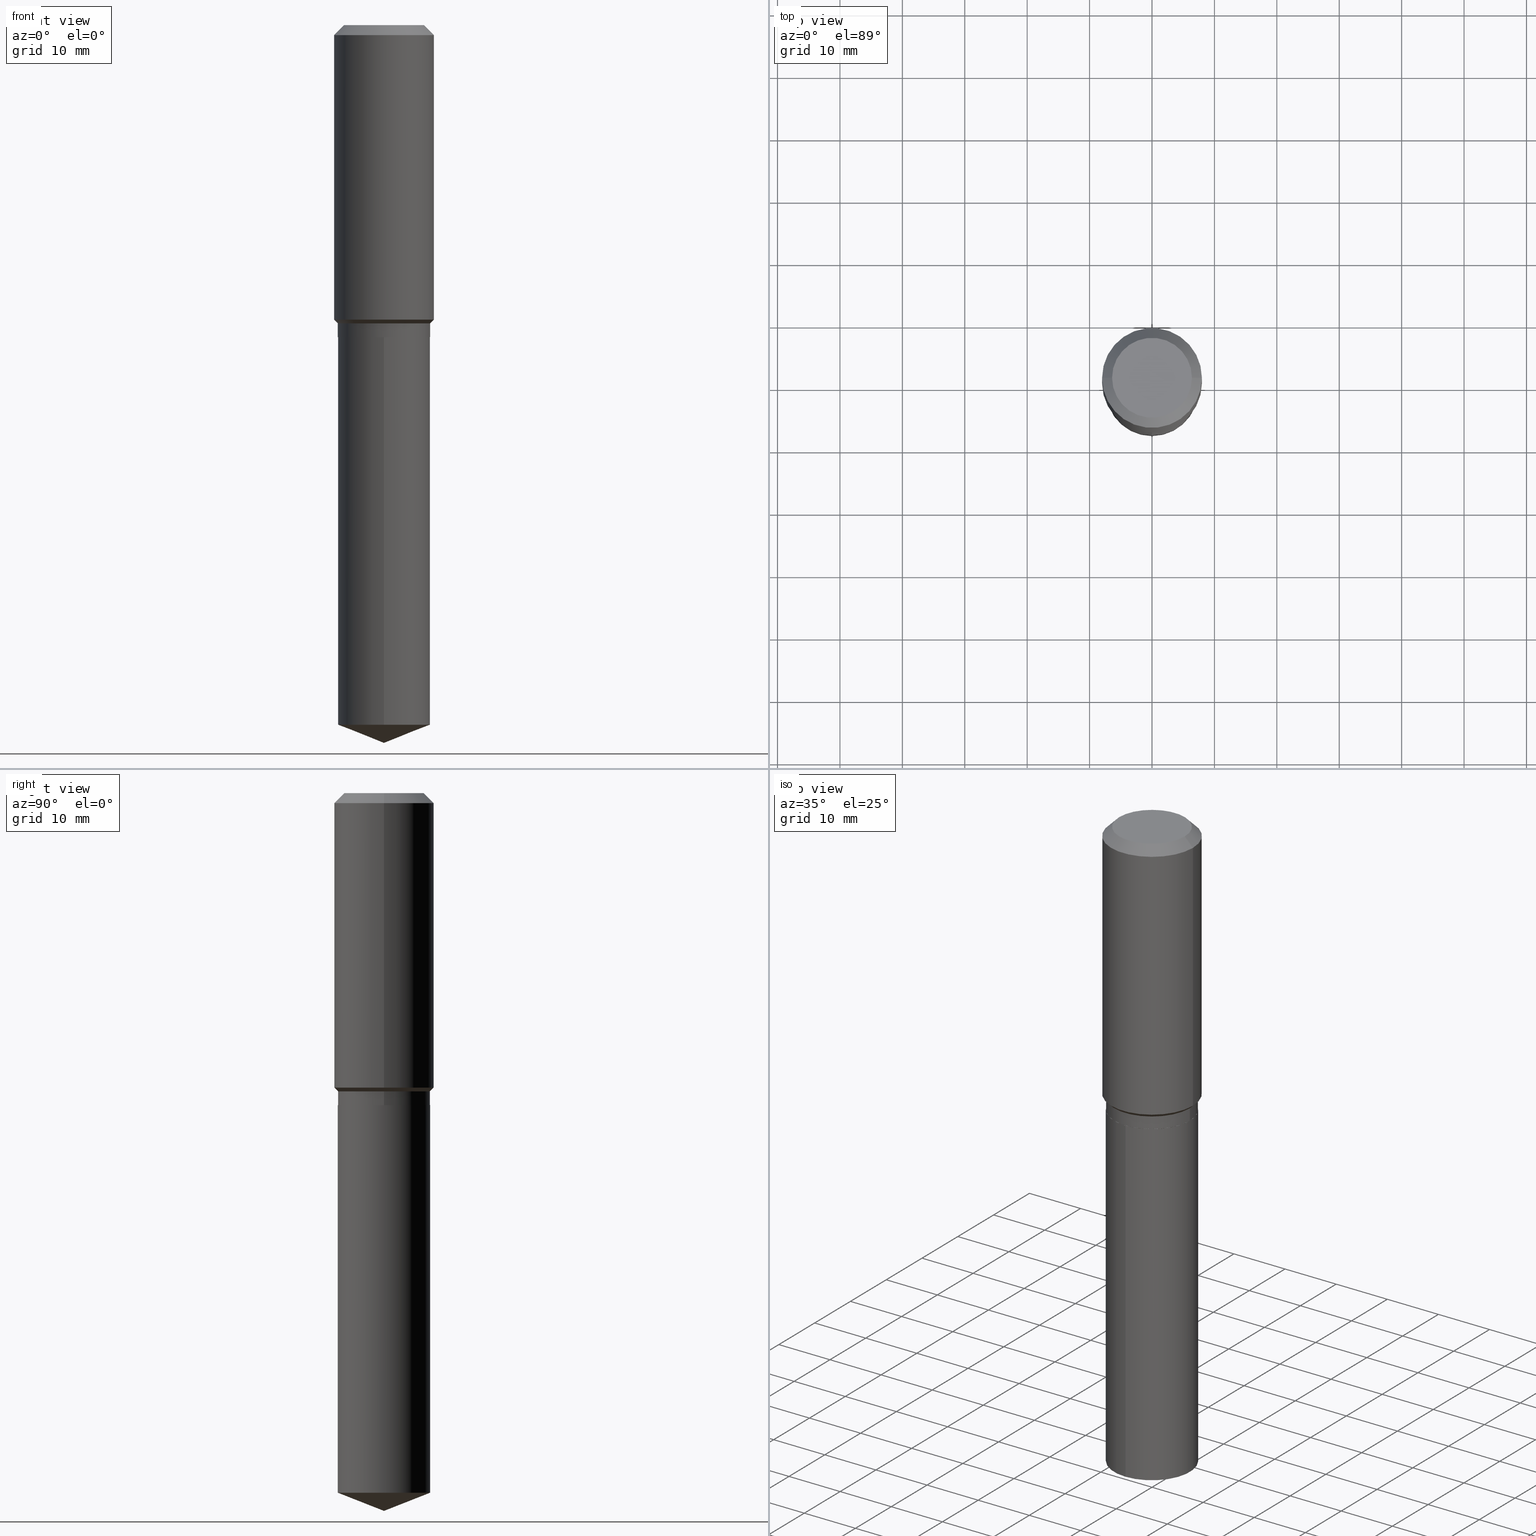
[diagram: canonical four-view strip — front | top / right | iso, engineering-drawing reading convention]
A machine part, canonical four-view strip (front | top / right | iso — engineering-drawing reading convention). The complete STEP part file that produces these views, byte-faithful:
ISO-10303-21;
HEADER;
FILE_DESCRIPTION (( 'STEP AP203' ),
    '1' );
FILE_NAME ('66498.STEP',
    '2024-04-24T23:47:00',
    ( '' ),
    ( '' ),
    'SwSTEP 2.0',
    'SolidWorks 2023',
    '' );
FILE_SCHEMA (( 'CONFIG_CONTROL_DESIGN' ));
ENDSEC;

DATA;
#1 = COORDINATED_UNIVERSAL_TIME_OFFSET ( 5, 0, .BEHIND. ) ;
#2 = CARTESIAN_POINT ( 'NONE',  ( 0.3149500000000000077, -2.380642253931875190E-15, -0.06299000000000036514 ) ) ;
#3 = LINE ( 'NONE', #312, #62 ) ;
#4 = ADVANCED_FACE ( 'NONE', ( #210 ), #475, .T. ) ;
#5 = ORIENTED_EDGE ( 'NONE', *, *, #19, .F. ) ;
#6 = CC_DESIGN_APPROVAL ( #429, ( #183 ) ) ;
#7 = CARTESIAN_POINT ( 'NONE',  ( -4.713871149261284790E-47, 6.730158695841843144E-33, 1.927594061857935750E-18 ) ) ;
#8 = LINE ( 'NONE', #424, #420 ) ;
#9 = EDGE_CURVE ( 'NONE', #451, #253, #331, .T. ) ;
#10 =( NAMED_UNIT ( * ) PLANE_ANGLE_UNIT ( ) SI_UNIT ( $, .RADIAN. ) );
#11 = ORIENTED_EDGE ( 'NONE', *, *, #148, .T. ) ;
#12 = ORIENTED_EDGE ( 'NONE', *, *, #295, .F. ) ;
#13 = CIRCLE ( 'NONE', #486, 0.3149500000000002298 ) ;
#14 = CIRCLE ( 'NONE', #317, 0.2913499999999999979 ) ;
#15 = DIRECTION ( 'NONE',  ( -6.982962677686265922E-15, -1.000000000000000000, 3.750606478344620614E-15 ) ) ;
#16 = EDGE_CURVE ( 'NONE', #98, #66, #206, .T. ) ;
#17 = DIRECTION ( 'NONE',  ( -0.7071067811865453523, 2.468850131082234184E-15, -0.7071067811865496822 ) ) ;
#18 = LENGTH_MEASURE_WITH_UNIT ( LENGTH_MEASURE( 0.02539999999999999897 ), #285 );
#19 = EDGE_CURVE ( 'NONE', #457, #319, #299, .T. ) ;
#20 = CARTESIAN_POINT ( 'NONE',  ( 4.812682610572347912E-29, -6.871235274843308626E-15, -1.967999999999999527 ) ) ;
#21 = CIRCLE ( 'NONE', #400, 0.2913499999999999979 ) ;
#22 = CARTESIAN_POINT ( 'NONE',  ( 1.540400801016026329E-30, -2.199284095337310135E-16, -0.06299000000000036514 ) ) ;
#23 = FACE_OUTER_BOUND ( 'NONE', #205, .T. ) ;
#24 = ORIENTED_EDGE ( 'NONE', *, *, #484, .F. ) ;
#25 = ORIENTED_EDGE ( 'NONE', *, *, #67, .T. ) ;
#26 = ADVANCED_FACE ( 'NONE', ( #453 ), #102, .T. ) ;
#27 = ADVANCED_FACE ( 'NONE', ( #263 ), #43, .F. ) ;
#28 = DATE_AND_TIME ( #324, #329 ) ;
#29 = CARTESIAN_POINT ( 'NONE',  ( 1.079154912815724214E-28, -1.540718386847978114E-14, -4.412834182929587179 ) ) ;
#30 = CIRCLE ( 'NONE', #170, 0.2913499999999999979 ) ;
#31 = ORIENTED_EDGE ( 'NONE', *, *, #106, .F. ) ;
#32 = ADVANCED_FACE ( 'NONE', ( #458 ), #422, .T. ) ;
#33 = DIRECTION ( 'NONE',  ( 1.000000000000000000, -6.982962677686267499E-15, 0.000000000000000000 ) ) ;
#34 = PERSON_AND_ORGANIZATION ( #169, #267 ) ;
#35 = DIRECTION ( 'NONE',  ( -2.445468806185136597E-29, 3.491481338843145583E-15, 1.000000000000000000 ) ) ;
#36 = PERSON_AND_ORGANIZATION ( #169, #267 ) ;
#37 = AXIS2_PLACEMENT_3D ( 'NONE', #286, #165, #389 ) ;
#38 = ORIENTED_EDGE ( 'NONE', *, *, #273, .T. ) ;
#39 = VECTOR ( 'NONE', #190, 39.37007874015748854 ) ;
#40 = LINE ( 'NONE', #490, #39 ) ;
#41 = APPROVAL_DATE_TIME ( #365, #429 ) ;
#42 = EDGE_LOOP ( 'NONE', ( #426, #122, #454, #74 ) ) ;
#43 = PLANE ( 'NONE',  #279 ) ;
#44 = DIRECTION ( 'NONE',  ( -2.445468806185136877E-29, 3.491481338843145188E-15, 1.000000000000000000 ) ) ;
#45 = VERTEX_POINT ( 'NONE', #72 ) ;
#46 = VECTOR ( 'NONE', #107, 39.37007874015748854 ) ;
#47 = CARTESIAN_POINT ( 'NONE',  ( -0.3149500000000002298, -4.247572240624702209E-15, -1.857499999999999041 ) ) ;
#48 = PRODUCT_DEFINITION_FORMATION_WITH_SPECIFIED_SOURCE ( 'ANY', '', #416, .NOT_KNOWN. ) ;
#49 = ORIENTED_EDGE ( 'NONE', *, *, #67, .F. ) ;
#50 = FACE_OUTER_BOUND ( 'NONE', #185, .T. ) ;
#51 = CARTESIAN_POINT ( 'NONE',  ( -0.3149500000000001743, 2.237854346276436774E-15, -1.549218606675783237E-29 ) ) ;
#52 = ORIENTED_EDGE ( 'NONE', *, *, #381, .T. ) ;
#53 = DIRECTION ( 'NONE',  ( -2.445510039064079162E-29, 3.491422291013670313E-15, 1.000000000000000000 ) ) ;
#54 = APPROVAL_PERSON_ORGANIZATION ( #96, #386, #435 ) ;
#55 = CARTESIAN_POINT ( 'NONE',  ( 1.540400801016026329E-30, -2.199284095337310135E-16, -0.06299000000000036514 ) ) ;
#56 = MECHANICAL_CONTEXT ( 'NONE', #234, 'mechanical' ) ;
#57 = DIRECTION ( 'NONE',  ( 1.000000000000000000, -6.982962677686264344E-15, 0.000000000000000000 ) ) ;
#58 = EDGE_LOOP ( 'NONE', ( #188, #11 ) ) ;
#59 = ORIENTED_EDGE ( 'NONE', *, *, #295, .T. ) ;
#60 = VECTOR ( 'NONE', #192, 39.37007874015748143 ) ;
#61 = APPROVAL_PERSON_ORGANIZATION ( #36, #429, #409 ) ;
#62 = VECTOR ( 'NONE', #17, 39.37007874015748143 ) ;
#63 = CARTESIAN_POINT ( 'NONE',  ( 2.070166260637159556E-15, 0.2913499999999845658, -4.412834182929588067 ) ) ;
#64 = EDGE_CURVE ( 'NONE', #66, #98, #236, .T. ) ;
#65 = DIRECTION ( 'NONE',  ( 1.000000000000000000, -6.982962677686266711E-15, 0.000000000000000000 ) ) ;
#66 = VERTEX_POINT ( 'NONE', #224 ) ;
#67 = EDGE_CURVE ( 'NONE', #95, #284, #3, .T. ) ;
#68 = VECTOR ( 'NONE', #44, 39.37007874015748143 ) ;
#69 = CC_DESIGN_DATE_AND_TIME_ASSIGNMENT ( #218, #180, ( #183 ) ) ;
#70 = DIRECTION ( 'NONE',  ( 1.000000000000000000, -6.982962677686266711E-15, 0.000000000000000000 ) ) ;
#71 = COORDINATED_UNIVERSAL_TIME_OFFSET ( 5, 0, .BEHIND. ) ;
#72 = CARTESIAN_POINT ( 'NONE',  ( 0.2913499999999999979, -8.602311722641732307E-15, -1.881099999999999328 ) ) ;
#73 = SECURITY_CLASSIFICATION_LEVEL ( 'unclassified' ) ;
#74 = ORIENTED_EDGE ( 'NONE', *, *, #360, .F. ) ;
#75 = CLOSED_SHELL ( 'NONE', ( #85, #26, #256, #32, #370, #311, #86, #4, #233, #27, #333, #154 ) ) ;
#76 = AXIS2_PLACEMENT_3D ( 'NONE', #20, #243, #167 ) ;
#77 = CIRCLE ( 'NONE', #237, 0.2913499999999999979 ) ;
#78 = CARTESIAN_POINT ( 'NONE',  ( -9.427742298522569579E-47, 1.346031739168368629E-32, 3.855188123715871501E-18 ) ) ;
#79 = ORIENTED_EDGE ( 'NONE', *, *, #484, .T. ) ;
#80 = DIRECTION ( 'NONE',  ( -6.982962677686265922E-15, -1.000000000000000000, 3.750606478344620614E-15 ) ) ;
#81 = ORIENTED_EDGE ( 'NONE', *, *, #197, .T. ) ;
#82 = CARTESIAN_POINT ( 'NONE',  ( 1.107229125286652387E-28, -1.580776356479349087E-14, -4.527599999999999625 ) ) ;
#83 = PRODUCT_DEFINITION_SHAPE ( 'NONE', 'NONE',  #308 ) ;
#84 = LINE ( 'NONE', #194, #255 ) ;
#85 = ADVANCED_FACE ( 'NONE', ( #460 ), #119, .T. ) ;
#86 = ADVANCED_FACE ( 'NONE', ( #291 ), #184, .T. ) ;
#87 = AXIS2_PLACEMENT_3D ( 'NONE', #439, #171, #474 ) ;
#88 = CYLINDRICAL_SURFACE ( 'NONE', #373, 0.3149500000000001743 ) ;
#89 = CARTESIAN_POINT ( 'NONE',  ( 4.600171371314858476E-29, -6.567825546497838684E-15, -1.881099999999999328 ) ) ;
#90 = ORIENTED_EDGE ( 'NONE', *, *, #433, .F. ) ;
#91 = DIRECTION ( 'NONE',  ( -2.445468806185136597E-29, 3.491481338843145583E-15, 1.000000000000000000 ) ) ;
#92 = ORIENTED_EDGE ( 'NONE', *, *, #397, .T. ) ;
#93 = CARTESIAN_POINT ( 'NONE',  ( 1.079154912815724214E-28, -1.540718386847978114E-14, -4.412834182929587179 ) ) ;
#94 = VERTEX_POINT ( 'NONE', #408 ) ;
#95 = VERTEX_POINT ( 'NONE', #261 ) ;
#96 = PERSON_AND_ORGANIZATION ( #169, #267 ) ;
#97 = AXIS2_PLACEMENT_3D ( 'NONE', #294, #357, #293 ) ;
#98 = VERTEX_POINT ( 'NONE', #217 ) ;
#99 = DIRECTION ( 'NONE',  ( 1.000000000000000000, -6.982962677686266711E-15, 0.000000000000000000 ) ) ;
#100 = DIRECTION ( 'NONE',  ( -6.982962677686265922E-15, -1.000000000000000000, 3.750606478344620614E-15 ) ) ;
#101 = CARTESIAN_POINT ( 'NONE',  ( 0.000000000000000000, 0.000000000000000000, 0.000000000000000000 ) ) ;
#102 = CONICAL_SURFACE ( 'NONE', #476, 0.3149500000000000077, 0.7853981633974452814 ) ;
#103 = DIRECTION ( 'NONE',  ( -2.445468806185136597E-29, 3.491481338843145583E-15, 1.000000000000000000 ) ) ;
#104 =( GEOMETRIC_REPRESENTATION_CONTEXT ( 3 ) GLOBAL_UNCERTAINTY_ASSIGNED_CONTEXT ( ( #166 ) ) GLOBAL_UNIT_ASSIGNED_CONTEXT ( ( #354, #10, #432 ) ) REPRESENTATION_CONTEXT ( 'NONE', 'WORKASPACE' ) );
#105 = CIRCLE ( 'NONE', #297, 0.2519600000000000173 ) ;
#106 = EDGE_CURVE ( 'NONE', #95, #94, #402, .T. ) ;
#107 = DIRECTION ( 'NONE',  ( -0.7071067811865469066, 7.493145998870351005E-15, 0.7071067811865479058 ) ) ;
#108 = CARTESIAN_POINT ( 'NONE',  ( -0.2908499999999999974, -4.806367468554479152E-15, -1.968499999999999472 ) ) ;
#109 = CARTESIAN_POINT ( 'NONE',  ( -0.2913499999999999979, -4.649364150033521384E-15, -1.881099999999999328 ) ) ;
#110 = PERSON_AND_ORGANIZATION ( #169, #267 ) ;
#111 = PERSON_AND_ORGANIZATION_ROLE ( 'classification_officer' ) ;
#112 = DIRECTION ( 'NONE',  ( 2.445468806185136597E-29, -3.491481338843145583E-15, -1.000000000000000000 ) ) ;
#113 = EDGE_CURVE ( 'NONE', #45, #226, #219, .T. ) ;
#114 = EDGE_LOOP ( 'NONE', ( #151, #81, #52, #49 ) ) ;
#115 = CARTESIAN_POINT ( 'NONE',  ( 0.2913499999999999979, -8.602311722641732307E-15, -1.881099999999999328 ) ) ;
#116 = SHAPE_DEFINITION_REPRESENTATION ( #83, #443 ) ;
#117 = DIRECTION ( 'NONE',  ( 1.000000000000000000, -6.982962677686267499E-15, 0.000000000000000000 ) ) ;
#118 = AXIS2_PLACEMENT_3D ( 'NONE', #482, #193, #348 ) ;
#119 = CONICAL_SURFACE ( 'NONE', #371, 0.2908499999999999974, 0.7853981633975507526 ) ;
#120 = DIRECTION ( 'NONE',  ( 1.000000000000000000, -6.982962677686266711E-15, 4.876115136096691995E-29 ) ) ;
#121 = CARTESIAN_POINT ( 'NONE',  ( 4.813905344975440153E-29, -6.872981015512730130E-15, -1.968499999999999472 ) ) ;
#122 = ORIENTED_EDGE ( 'NONE', *, *, #9, .T. ) ;
#123 = CARTESIAN_POINT ( 'NONE',  ( 4.600171371314858476E-29, -6.567825546497838684E-15, -1.881099999999999328 ) ) ;
#124 = FACE_OUTER_BOUND ( 'NONE', #143, .T. ) ;
#125 = CIRCLE ( 'NONE', #76, 0.2913499999999999979 ) ;
#126 = LINE ( 'NONE', #163, #60 ) ;
#127 = ORIENTED_EDGE ( 'NONE', *, *, #360, .T. ) ;
#128 = CYLINDRICAL_SURFACE ( 'NONE', #431, 0.2913499999999999979 ) ;
#129 = DIRECTION ( 'NONE',  ( 1.000000000000000000, -6.982962677686267499E-15, 0.000000000000000000 ) ) ;
#130 = EDGE_CURVE ( 'NONE', #457, #152, #40, .T. ) ;
#131 = ORIENTED_EDGE ( 'NONE', *, *, #113, .F. ) ;
#132 = PERSON_AND_ORGANIZATION_ROLE ( 'design_owner' ) ;
#133 = DIRECTION ( 'NONE',  ( 1.000000000000000000, -6.982962677686265922E-15, 4.876176775795935232E-29 ) ) ;
#134 = EDGE_CURVE ( 'NONE', #447, #305, #14, .T. ) ;
#135 = CARTESIAN_POINT ( 'NONE',  ( 0.000000000000000000, 0.000000000000000000, 0.000000000000000000 ) ) ;
#136 = CC_DESIGN_PERSON_AND_ORGANIZATION_ASSIGNMENT ( #335, #213, ( #48 ) ) ;
#137 = COORDINATED_UNIVERSAL_TIME_OFFSET ( 5, 0, .BEHIND. ) ;
#138 = DIRECTION ( 'NONE',  ( -2.445468806185136877E-29, 3.491481338843145188E-15, 1.000000000000000000 ) ) ;
#139 = CARTESIAN_POINT ( 'NONE',  ( 0.000000000000000000, 0.000000000000000000, 0.000000000000000000 ) ) ;
#140 = DIRECTION ( 'NONE',  ( -2.445468806185136597E-29, 3.491481338843145583E-15, 1.000000000000000000 ) ) ;
#141 = CARTESIAN_POINT ( 'NONE',  ( 4.813905344975440153E-29, -6.872981015512730130E-15, -1.968499999999999472 ) ) ;
#142 = DIRECTION ( 'NONE',  ( -2.445468806185136597E-29, 3.491481338843145583E-15, 1.000000000000000000 ) ) ;
#143 = EDGE_LOOP ( 'NONE', ( #449, #31, #25, #425 ) ) ;
#144 = DIRECTION ( 'NONE',  ( 0.7071067811865469066, -2.468850131082251144E-15, 0.7071067811865479058 ) ) ;
#145 = AXIS2_PLACEMENT_3D ( 'NONE', #200, #289, #99 ) ;
#146 = DIRECTION ( 'NONE',  ( -1.000000000000000000, 6.982962677686266711E-15, 0.000000000000000000 ) ) ;
#147 = ORIENTED_EDGE ( 'NONE', *, *, #300, .F. ) ;
#148 = EDGE_CURVE ( 'NONE', #94, #95, #105, .T. ) ;
#149 = EDGE_CURVE ( 'NONE', #161, #45, #77, .T. ) ;
#150 = CARTESIAN_POINT ( 'NONE',  ( 4.813905344975440153E-29, -6.872981015512730130E-15, -1.968499999999999472 ) ) ;
#151 = ORIENTED_EDGE ( 'NONE', *, *, #148, .F. ) ;
#152 = VERTEX_POINT ( 'NONE', #445 ) ;
#153 = AXIS2_PLACEMENT_3D ( 'NONE', #387, #310, #459 ) ;
#154 = ADVANCED_FACE ( 'NONE', ( #187 ), #175, .T. ) ;
#155 = LOCAL_TIME ( 19, 47, 0.000000000000000000, #137 ) ;
#156 = FACE_OUTER_BOUND ( 'NONE', #240, .T. ) ;
#157 = CARTESIAN_POINT ( 'NONE',  ( 4.812682610572347912E-29, -6.871235274843308626E-15, -1.967999999999999527 ) ) ;
#158 = DIRECTION ( 'NONE',  ( 0.7071067811865453523, -7.319954787623248157E-15, -0.7071067811865496822 ) ) ;
#159 = ORIENTED_EDGE ( 'NONE', *, *, #134, .T. ) ;
#160 = CARTESIAN_POINT ( 'NONE',  ( -0.3149500000000000077, -1.114823151940998237E-15, -0.06299000000000036514 ) ) ;
#161 = VERTEX_POINT ( 'NONE', #109 ) ;
#162 = CIRCLE ( 'NONE', #410, 0.3149500000000000077 ) ;
#163 = CARTESIAN_POINT ( 'NONE',  ( 0.3149500000000001743, -2.199284095337290660E-15, 1.535751875536930690E-29 ) ) ;
#164 = APPLICATION_PROTOCOL_DEFINITION ( 'international standard', 'config_control_design', 1994, #234 ) ;
#165 = DIRECTION ( 'NONE',  ( 2.445468806185136597E-29, -3.491481338843145583E-15, -1.000000000000000000 ) ) ;
#166 = UNCERTAINTY_MEASURE_WITH_UNIT (LENGTH_MEASURE( 1.000000000000000082E-05 ), #354, 'distance_accuracy_value', 'NONE');
#167 = DIRECTION ( 'NONE',  ( 1.000000000000000000, -6.982962677686267499E-15, 0.000000000000000000 ) ) ;
#168 = EDGE_LOOP ( 'NONE', ( #59, #467, #380, #147 ) ) ;
#169 = PERSON ( 'UNSPECIFIED', 'UNSPECIFIED', 'UNSPECIFIED', ('UNSPECIFIED'), ('UNSPECIFIED'), ('UNSPECIFIED') ) ;
#170 = AXIS2_PLACEMENT_3D ( 'NONE', #93, #390, #455 ) ;
#171 = DIRECTION ( 'NONE',  ( -2.438088387897960049E-29, 3.491481338843145188E-15, 1.000000000000000000 ) ) ;
#172 = CARTESIAN_POINT ( 'NONE',  ( -0.2913499999999999979, 2.070166260637051876E-15, -1.433131738545766651E-29 ) ) ;
#173 = EDGE_LOOP ( 'NONE', ( #225, #403, #338, #352 ) ) ;
#174 = PLANE ( 'NONE',  #87 ) ;
#175 = CONICAL_SURFACE ( 'NONE', #384, 0.2908499999999999974, 0.7853981633975507526 ) ;
#176 = CARTESIAN_POINT ( 'NONE',  ( -0.2908499999999999974, -4.803718241380367951E-15, -1.968499999999999472 ) ) ;
#177 = PERSON_AND_ORGANIZATION_ROLE ( 'design_supplier' ) ;
#178 = EDGE_CURVE ( 'NONE', #447, #45, #337, .T. ) ;
#179 = DIRECTION ( 'NONE',  ( -2.445468806185136597E-29, 3.491481338843145583E-15, 1.000000000000000000 ) ) ;
#180 = DATE_TIME_ROLE ( 'classification_date' ) ;
#181 = AXIS2_PLACEMENT_3D ( 'NONE', #468, #202, #129 ) ;
#182 = DESIGN_CONTEXT ( 'detailed design', #379, 'design' ) ;
#183 = SECURITY_CLASSIFICATION ( '', '', #73 ) ;
#184 = CONICAL_SURFACE ( 'NONE', #316, 0.2913499999999999979, 0.7853981633974476129 ) ;
#185 = EDGE_LOOP ( 'NONE', ( #5, #481, #290 ) ) ;
#186 = DATE_TIME_ROLE ( 'creation_date' ) ;
#187 = FACE_OUTER_BOUND ( 'NONE', #42, .T. ) ;
#188 = ORIENTED_EDGE ( 'NONE', *, *, #106, .T. ) ;
#189 = EDGE_LOOP ( 'NONE', ( #90, #363 ) ) ;
#190 = DIRECTION ( 'NONE',  ( -6.497071151882119836E-15, -0.9304175679820245737, 0.3665012267242972466 ) ) ;
#191 = AXIS2_PLACEMENT_3D ( 'NONE', #469, #53, #15 ) ;
#192 = DIRECTION ( 'NONE',  ( -2.445468806185136877E-29, 3.491481338843145188E-15, 1.000000000000000000 ) ) ;
#193 = DIRECTION ( 'NONE',  ( -2.445510039064079162E-29, 3.491422291013670313E-15, 1.000000000000000000 ) ) ;
#194 = CARTESIAN_POINT ( 'NONE',  ( -2.034486176143845503E-15, -0.2913500000000068257, -1.968499999999998362 ) ) ;
#195 = DIRECTION ( 'NONE',  ( 1.000000000000000000, 0.000000000000000000, 0.000000000000000000 ) ) ;
#196 = DIRECTION ( 'NONE',  ( 1.000000000000000000, -6.982962677686265922E-15, 4.876176775795935232E-29 ) ) ;
#197 = EDGE_CURVE ( 'NONE', #94, #339, #450, .T. ) ;
#198 = AXIS2_PLACEMENT_3D ( 'NONE', #141, #483, #334 ) ;
#199 = LINE ( 'NONE', #51, #68 ) ;
#200 = CARTESIAN_POINT ( 'NONE',  ( 4.813905344975440153E-29, -6.872981015512730130E-15, -1.968499999999999472 ) ) ;
#201 = ADVANCED_FACE ( 'NONE', ( #156 ), #128, .T. ) ;
#202 = DIRECTION ( 'NONE',  ( -2.445468806185136597E-29, 3.491481338843145583E-15, 1.000000000000000000 ) ) ;
#203 = CARTESIAN_POINT ( 'NONE',  ( 0.2913499999999999979, -8.905721450987203038E-15, -1.967999999999999527 ) ) ;
#204 = AXIS2_PLACEMENT_3D ( 'NONE', #461, #91, #350 ) ;
#205 = EDGE_LOOP ( 'NONE', ( #346, #307 ) ) ;
#206 = CIRCLE ( 'NONE', #198, 0.2913499999999999979 ) ;
#207 = APPROVAL_DATE_TIME ( #28, #386 ) ;
#208 = ORIENTED_EDGE ( 'NONE', *, *, #433, .T. ) ;
#209 = FACE_OUTER_BOUND ( 'NONE', #189, .T. ) ;
#210 = FACE_OUTER_BOUND ( 'NONE', #173, .T. ) ;
#211 = DIRECTION ( 'NONE',  ( 6.611014441532068167E-15, 0.9304175679820272382, 0.3665012267242907518 ) ) ;
#212 = DIRECTION ( 'NONE',  ( -2.445468806185136597E-29, 3.491481338843145583E-15, 1.000000000000000000 ) ) ;
#213 = PERSON_AND_ORGANIZATION_ROLE ( 'creator' ) ;
#214 = MANIFOLD_SOLID_BREP ( 'Body-Move/Copy2[1]', #393 ) ;
#215 = ADVANCED_FACE ( 'NONE', ( #272 ), #235, .T. ) ;
#216 = EDGE_LOOP ( 'NONE', ( #208, #361, #372, #228 ) ) ;
#217 = CARTESIAN_POINT ( 'NONE',  ( 2.070166260637159950E-15, 0.2913499999999931145, -1.968500000000000583 ) ) ;
#218 = DATE_AND_TIME ( #265, #288 ) ;
#219 = LINE ( 'NONE', #115, #248 ) ;
#220 = COORDINATED_UNIVERSAL_TIME_OFFSET ( 5, 0, .BEHIND. ) ;
#221 = CIRCLE ( 'NONE', #145, 0.2908499999999999974 ) ;
#222 = DIRECTION ( 'NONE',  ( 2.438088387897960049E-29, -3.491481338843145188E-15, -1.000000000000000000 ) ) ;
#223 = AXIS2_PLACEMENT_3D ( 'NONE', #123, #376, #117 ) ;
#224 = CARTESIAN_POINT ( 'NONE',  ( -2.034486176143845503E-15, -0.2913500000000068257, -1.968499999999998362 ) ) ;
#225 = ORIENTED_EDGE ( 'NONE', *, *, #249, .F. ) ;
#226 = VERTEX_POINT ( 'NONE', #313 ) ;
#227 = DIRECTION ( 'NONE',  ( -2.445510039064079162E-29, 3.491422291013670313E-15, 1.000000000000000000 ) ) ;
#228 = ORIENTED_EDGE ( 'NONE', *, *, #275, .F. ) ;
#229 = CONICAL_SURFACE ( 'NONE', #153, 99.94676754583991851, 1.195550537616119291 ) ;
#230 = FACE_OUTER_BOUND ( 'NONE', #326, .T. ) ;
#231 = ORIENTED_EDGE ( 'NONE', *, *, #273, .F. ) ;
#232 = EDGE_CURVE ( 'NONE', #152, #319, #30, .T. ) ;
#233 = ADVANCED_FACE ( 'NONE', ( #124 ), #287, .T. ) ;
#234 = APPLICATION_CONTEXT ( 'configuration controlled 3d designs of mechanical parts and assemblies' ) ;
#235 = CYLINDRICAL_SURFACE ( 'NONE', #191, 0.2913499999999999979 ) ;
#236 = CIRCLE ( 'NONE', #488, 0.2913499999999999979 ) ;
#237 = AXIS2_PLACEMENT_3D ( 'NONE', #89, #369, #33 ) ;
#238 = DIRECTION ( 'NONE',  ( -2.445510039064079162E-29, 3.491422291013670313E-15, 1.000000000000000000 ) ) ;
#239 = ADVANCED_FACE ( 'NONE', ( #230 ), #229, .T. ) ;
#240 = EDGE_LOOP ( 'NONE', ( #264, #419, #470, #231 ) ) ;
#241 = CARTESIAN_POINT ( 'NONE',  ( 0.000000000000000000, 0.000000000000000000, 0.000000000000000000 ) ) ;
#242 = DIRECTION ( 'NONE',  ( -2.445468806185136597E-29, 3.491481338843145583E-15, 1.000000000000000000 ) ) ;
#243 = DIRECTION ( 'NONE',  ( -2.445468806185136597E-29, 3.491481338843145583E-15, 1.000000000000000000 ) ) ;
#244 = EDGE_LOOP ( 'NONE', ( #437, #421, #38, #252 ) ) ;
#245 = FACE_OUTER_BOUND ( 'NONE', #271, .T. ) ;
#246 = VECTOR ( 'NONE', #211, 39.37007874015747433 ) ;
#247 = CIRCLE ( 'NONE', #181, 0.2913499999999999979 ) ;
#248 = VECTOR ( 'NONE', #144, 39.37007874015748854 ) ;
#249 = EDGE_CURVE ( 'NONE', #281, #284, #199, .T. ) ;
#250 = LINE ( 'NONE', #108, #302 ) ;
#251 = CC_DESIGN_PERSON_AND_ORGANIZATION_ASSIGNMENT ( #327, #328, ( #308 ) ) ;
#252 = ORIENTED_EDGE ( 'NONE', *, *, #16, .F. ) ;
#253 = VERTEX_POINT ( 'NONE', #345 ) ;
#254 = APPROVAL_DATE_TIME ( #452, #282 ) ;
#255 = VECTOR ( 'NONE', #227, 39.37007874015748143 ) ;
#256 = ADVANCED_FACE ( 'NONE', ( #418 ), #88, .T. ) ;
#257 = DIRECTION ( 'NONE',  ( 1.000000000000000000, -6.982962677686266711E-15, 4.876115136096691995E-29 ) ) ;
#258 = DIMENSIONAL_EXPONENTS ( 1.000000000000000000, 0.000000000000000000, 0.000000000000000000, 0.000000000000000000, 0.000000000000000000, 0.000000000000000000, 0.000000000000000000 ) ;
#259 = COORDINATED_UNIVERSAL_TIME_OFFSET ( 5, 0, .BEHIND. ) ;
#260 = DIRECTION ( 'NONE',  ( -1.000000000000000000, 6.982962677686265922E-15, -4.876176775795935793E-29 ) ) ;
#261 = CARTESIAN_POINT ( 'NONE',  ( -0.2519600000000000173, 1.869391481036695286E-15, 3.855188123703182704E-18 ) ) ;
#262 = APPROVAL_STATUS ( 'not_yet_approved' ) ;
#263 = FACE_OUTER_BOUND ( 'NONE', #58, .T. ) ;
#264 = ORIENTED_EDGE ( 'NONE', *, *, #232, .T. ) ;
#265 = CALENDAR_DATE ( 2024, 24, 4 ) ;
#266 = EDGE_LOOP ( 'NONE', ( #315, #127, #277, #385 ) ) ;
#267 = ORGANIZATION ( 'UNSPECIFIED', 'UNSPECIFIED', '' ) ;
#268 = CARTESIAN_POINT ( 'NONE',  ( 4.813905344975440153E-29, -6.872981015512730130E-15, -1.968499999999999472 ) ) ;
#269 = CC_DESIGN_APPROVAL ( #282, ( #48 ) ) ;
#270 = CARTESIAN_POINT ( 'NONE',  ( 0.000000000000000000, 0.000000000000000000, 0.000000000000000000 ) ) ;
#271 = EDGE_LOOP ( 'NONE', ( #159, #92, #24, #367 ) ) ;
#272 = FACE_OUTER_BOUND ( 'NONE', #244, .T. ) ;
#273 = EDGE_CURVE ( 'NONE', #152, #66, #84, .T. ) ;
#274 = DIRECTION ( 'NONE',  ( -2.445468806185136597E-29, 3.491481338843145583E-15, 1.000000000000000000 ) ) ;
#275 = EDGE_CURVE ( 'NONE', #253, #447, #8, .T. ) ;
#276 = VECTOR ( 'NONE', #414, 39.37007874015748143 ) ;
#277 = ORIENTED_EDGE ( 'NONE', *, *, #178, .T. ) ;
#278 = LOCAL_TIME ( 19, 47, 0.000000000000000000, #1 ) ;
#279 = AXIS2_PLACEMENT_3D ( 'NONE', #7, #222, #260 ) ;
#280 = FACE_OUTER_BOUND ( 'NONE', #266, .T. ) ;
#281 = VERTEX_POINT ( 'NONE', #47 ) ;
#282 = APPROVAL ( #304, 'UNSPECIFIED' ) ;
#283 = CARTESIAN_POINT ( 'NONE',  ( -0.2913499999999999979, -4.649364150033521384E-15, -1.967999999999999527 ) ) ;
#284 = VERTEX_POINT ( 'NONE', #160 ) ;
#285 =( LENGTH_UNIT ( ) NAMED_UNIT ( * ) SI_UNIT ( $, .METRE. ) );
#286 = CARTESIAN_POINT ( 'NONE',  ( 1.540400801016026329E-30, -2.199284095337310135E-16, -0.06299000000000036514 ) ) ;
#287 = CONICAL_SURFACE ( 'NONE', #37, 0.3149500000000000077, 0.7853981633974452814 ) ;
#288 = LOCAL_TIME ( 19, 47, 0.000000000000000000, #71 ) ;
#289 = DIRECTION ( 'NONE',  ( -2.445468806185136597E-29, 3.491481338843145583E-15, 1.000000000000000000 ) ) ;
#290 = ORIENTED_EDGE ( 'NONE', *, *, #359, .F. ) ;
#291 = FACE_OUTER_BOUND ( 'NONE', #351, .T. ) ;
#292 = APPROVAL_STATUS ( 'not_yet_approved' ) ;
#293 = DIRECTION ( 'NONE',  ( 6.982962677686265922E-15, 1.000000000000000000, -3.491422291013670313E-15 ) ) ;
#294 = CARTESIAN_POINT ( 'NONE',  ( 4.813905344975440153E-29, -6.872981015512730130E-15, -1.968499999999999472 ) ) ;
#295 = EDGE_CURVE ( 'NONE', #226, #281, #322, .T. ) ;
#296 = LINE ( 'NONE', #320, #46 ) ;
#297 = AXIS2_PLACEMENT_3D ( 'NONE', #78, #377, #257 ) ;
#298 = CARTESIAN_POINT ( 'NONE',  ( 4.542458307488888673E-29, -6.485426586901138982E-15, -1.857499999999999041 ) ) ;
#299 = LINE ( 'NONE', #442, #246 ) ;
#300 = EDGE_CURVE ( 'NONE', #226, #339, #126, .T. ) ;
#301 = CARTESIAN_POINT ( 'NONE',  ( 0.2913499999999999979, -2.034486176143893623E-15, 1.420674103628145772E-29 ) ) ;
#302 = VECTOR ( 'NONE', #395, 39.37007874015748143 ) ;
#303 = PRODUCT_RELATED_PRODUCT_CATEGORY ( 'detail', '', ( #416 ) ) ;
#304 = APPROVAL_STATUS ( 'not_yet_approved' ) ;
#305 = VERTEX_POINT ( 'NONE', #283 ) ;
#306 = DIRECTION ( 'NONE',  ( -2.445468806185136877E-29, 3.491481338843145188E-15, 1.000000000000000000 ) ) ;
#307 = ORIENTED_EDGE ( 'NONE', *, *, #16, .T. ) ;
#308 = PRODUCT_DEFINITION ( 'UNKNOWN', '', #48, #182 ) ;
#309 = APPROVAL_PERSON_ORGANIZATION ( #110, #282, #368 ) ;
#310 = DIRECTION ( 'NONE',  ( -2.445510039064079162E-29, 3.491422291013670313E-15, 1.000000000000000000 ) ) ;
#311 = ADVANCED_FACE ( 'NONE', ( #280 ), #356, .T. ) ;
#312 = CARTESIAN_POINT ( 'NONE',  ( -0.3149500000000000077, 1.979355685803558833E-15, -0.06299000000000036514 ) ) ;
#313 = CARTESIAN_POINT ( 'NONE',  ( 0.3149500000000002298, -8.684710682238430431E-15, -1.857499999999999041 ) ) ;
#314 = CC_DESIGN_DATE_AND_TIME_ASSIGNMENT ( #341, #186, ( #308 ) ) ;
#315 = ORIENTED_EDGE ( 'NONE', *, *, #397, .F. ) ;
#316 = AXIS2_PLACEMENT_3D ( 'NONE', #434, #103, #340 ) ;
#317 = AXIS2_PLACEMENT_3D ( 'NONE', #157, #179, #411 ) ;
#318 = DIRECTION ( 'NONE',  ( -6.982962677686265922E-15, -1.000000000000000000, 3.750606478344620614E-15 ) ) ;
#319 = VERTEX_POINT ( 'NONE', #63 ) ;
#320 = CARTESIAN_POINT ( 'NONE',  ( -0.2913499999999999979, -4.497659285860786019E-15, -1.881099999999999328 ) ) ;
#321 = CARTESIAN_POINT ( 'NONE',  ( 4.813905344975440153E-29, -6.872981015512730130E-15, -1.968499999999999472 ) ) ;
#322 = CIRCLE ( 'NONE', #204, 0.3149500000000002298 ) ;
#323 = CARTESIAN_POINT ( 'NONE',  ( 0.3149500000000000077, -2.419212504871020909E-15, -0.06299000000000036514 ) ) ;
#324 = CALENDAR_DATE ( 2024, 24, 4 ) ;
#325 = ADVANCED_FACE ( 'NONE', ( #23 ), #398, .F. ) ;
#326 = EDGE_LOOP ( 'NONE', ( #446, #399, #417 ) ) ;
#327 = PERSON_AND_ORGANIZATION ( #169, #267 ) ;
#328 = PERSON_AND_ORGANIZATION_ROLE ( 'creator' ) ;
#329 = LOCAL_TIME ( 19, 47, 0.000000000000000000, #259 ) ;
#330 = DIRECTION ( 'NONE',  ( 1.000000000000000000, -6.982962677686266711E-15, 0.000000000000000000 ) ) ;
#331 = CIRCLE ( 'NONE', #355, 0.2908499999999999974 ) ;
#332 = CALENDAR_DATE ( 2024, 24, 4 ) ;
#333 = ADVANCED_FACE ( 'NONE', ( #209 ), #174, .F. ) ;
#334 = DIRECTION ( 'NONE',  ( -6.982962677686265922E-15, -1.000000000000000000, 3.750606478344620614E-15 ) ) ;
#335 = PERSON_AND_ORGANIZATION ( #169, #267 ) ;
#336 = CARTESIAN_POINT ( 'NONE',  ( 1.540400801016026329E-30, -2.199284095337310135E-16, -0.06299000000000036514 ) ) ;
#337 = LINE ( 'NONE', #301, #471 ) ;
#338 = ORIENTED_EDGE ( 'NONE', *, *, #300, .T. ) ;
#339 = VERTEX_POINT ( 'NONE', #323 ) ;
#340 = DIRECTION ( 'NONE',  ( 1.000000000000000000, -6.982962677686267499E-15, 0.000000000000000000 ) ) ;
#341 = DATE_AND_TIME ( #477, #155 ) ;
#342 = CC_DESIGN_PERSON_AND_ORGANIZATION_ASSIGNMENT ( #427, #132, ( #416 ) ) ;
#343 = ORIENTED_EDGE ( 'NONE', *, *, #428, .F. ) ;
#344 = CARTESIAN_POINT ( 'NONE',  ( -9.427742298522569579E-47, 1.346031739168368629E-32, 3.855188123715871501E-18 ) ) ;
#345 = CARTESIAN_POINT ( 'NONE',  ( 0.2908499999999999974, -8.903975710317780745E-15, -1.968499999999999472 ) ) ;
#346 = ORIENTED_EDGE ( 'NONE', *, *, #64, .T. ) ;
#347 = AXIS2_PLACEMENT_3D ( 'NONE', #135, #472, #133 ) ;
#348 = DIRECTION ( 'NONE',  ( -6.982962677686265922E-15, -1.000000000000000000, 3.498627837350006195E-15 ) ) ;
#349 = APPLICATION_PROTOCOL_DEFINITION ( 'international standard', 'config_control_design', 1994, #379 ) ;
#350 = DIRECTION ( 'NONE',  ( 1.000000000000000000, -6.982962677686264344E-15, 0.000000000000000000 ) ) ;
#351 = EDGE_LOOP ( 'NONE', ( #375, #396, #438, #343 ) ) ;
#352 = ORIENTED_EDGE ( 'NONE', *, *, #485, .F. ) ;
#353 = AXIS2_PLACEMENT_3D ( 'NONE', #241, #394, #195 ) ;
#354 =( CONVERSION_BASED_UNIT ( 'INCH', #18 ) LENGTH_UNIT ( ) NAMED_UNIT ( #258 ) );
#355 = AXIS2_PLACEMENT_3D ( 'NONE', #364, #212, #330 ) ;
#356 = CYLINDRICAL_SURFACE ( 'NONE', #347, 0.2913499999999999979 ) ;
#357 = DIRECTION ( 'NONE',  ( 2.445510039064078601E-29, -3.491422291013670313E-15, -1.000000000000000000 ) ) ;
#358 = VECTOR ( 'NONE', #158, 39.37007874015748143 ) ;
#359 = EDGE_CURVE ( 'NONE', #319, #152, #21, .T. ) ;
#360 = EDGE_CURVE ( 'NONE', #305, #447, #125, .T. ) ;
#361 = ORIENTED_EDGE ( 'NONE', *, *, #413, .T. ) ;
#362 = LINE ( 'NONE', #172, #462 ) ;
#363 = ORIENTED_EDGE ( 'NONE', *, *, #9, .F. ) ;
#364 = CARTESIAN_POINT ( 'NONE',  ( 4.813905344975440153E-29, -6.872981015512730130E-15, -1.968499999999999472 ) ) ;
#365 = DATE_AND_TIME ( #374, #464 ) ;
#366 = AXIS2_PLACEMENT_3D ( 'NONE', #101, #242, #401 ) ;
#367 = ORIENTED_EDGE ( 'NONE', *, *, #178, .F. ) ;
#368 = APPROVAL_ROLE ( '' ) ;
#369 = DIRECTION ( 'NONE',  ( -2.445468806185136597E-29, 3.491481338843145583E-15, 1.000000000000000000 ) ) ;
#370 = ADVANCED_FACE ( 'NONE', ( #245 ), #440, .T. ) ;
#371 = AXIS2_PLACEMENT_3D ( 'NONE', #321, #274, #388 ) ;
#372 = ORIENTED_EDGE ( 'NONE', *, *, #134, .F. ) ;
#373 = AXIS2_PLACEMENT_3D ( 'NONE', #270, #430, #196 ) ;
#374 = CALENDAR_DATE ( 2024, 24, 4 ) ;
#375 = ORIENTED_EDGE ( 'NONE', *, *, #407, .F. ) ;
#376 = DIRECTION ( 'NONE',  ( -2.445468806185136597E-29, 3.491481338843145583E-15, 1.000000000000000000 ) ) ;
#377 = DIRECTION ( 'NONE',  ( -2.445468806185136597E-29, 3.491481338843145583E-15, 1.000000000000000000 ) ) ;
#378 = CARTESIAN_POINT ( 'NONE',  ( 2.070166260637099602E-15, 0.2913499999999931145, -1.968500000000000583 ) ) ;
#379 = APPLICATION_CONTEXT ( 'configuration controlled 3d designs of mechanical parts and assemblies' ) ;
#380 = ORIENTED_EDGE ( 'NONE', *, *, #381, .F. ) ;
#381 = EDGE_CURVE ( 'NONE', #339, #284, #444, .T. ) ;
#382 = MANIFOLD_SOLID_BREP ( 'Body-Move/Copy2[2]', #75 ) ;
#383 = DIRECTION ( 'NONE',  ( 0.7071067811866199593, -2.468850131083015945E-15, 0.7071067811864750752 ) ) ;
#384 = AXIS2_PLACEMENT_3D ( 'NONE', #150, #489, #70 ) ;
#385 = ORIENTED_EDGE ( 'NONE', *, *, #149, .F. ) ;
#386 = APPROVAL ( #292, 'UNSPECIFIED' ) ;
#387 = CARTESIAN_POINT ( 'NONE',  ( -8.520771271185407029E-28, 1.216496907119034314E-13, 34.84247874015748181 ) ) ;
#388 = DIRECTION ( 'NONE',  ( 1.000000000000000000, -6.982962677686266711E-15, 0.000000000000000000 ) ) ;
#389 = DIRECTION ( 'NONE',  ( -1.000000000000000000, 6.982962677686266711E-15, 0.000000000000000000 ) ) ;
#390 = DIRECTION ( 'NONE',  ( -2.445510039064079162E-29, 3.491422291013670313E-15, 1.000000000000000000 ) ) ;
#391 = CC_DESIGN_APPROVAL ( #386, ( #308 ) ) ;
#392 = CC_DESIGN_SECURITY_CLASSIFICATION ( #183, ( #48 ) ) ;
#393 = CLOSED_SHELL ( 'NONE', ( #201, #239, #463, #215, #325 ) ) ;
#394 = DIRECTION ( 'NONE',  ( 0.000000000000000000, 0.000000000000000000, 1.000000000000000000 ) ) ;
#395 = DIRECTION ( 'NONE',  ( -0.7071067811866199593, 7.493145998870616062E-15, 0.7071067811864750752 ) ) ;
#396 = ORIENTED_EDGE ( 'NONE', *, *, #149, .T. ) ;
#397 = EDGE_CURVE ( 'NONE', #305, #161, #362, .T. ) ;
#398 = PLANE ( 'NONE',  #97 ) ;
#399 = ORIENTED_EDGE ( 'NONE', *, *, #19, .T. ) ;
#400 = AXIS2_PLACEMENT_3D ( 'NONE', #29, #436, #100 ) ;
#401 = DIRECTION ( 'NONE',  ( 1.000000000000000000, -6.982962677686265922E-15, 4.876176775795935232E-29 ) ) ;
#402 = CIRCLE ( 'NONE', #465, 0.2519600000000000173 ) ;
#403 = ORIENTED_EDGE ( 'NONE', *, *, #428, .T. ) ;
#404 = DIRECTION ( 'NONE',  ( 1.000000000000000000, -6.982962677686265922E-15, 4.876176775795935232E-29 ) ) ;
#405 = AXIS2_PLACEMENT_3D ( 'NONE', #55, #140, #65 ) ;
#406 = PERSON_AND_ORGANIZATION ( #169, #267 ) ;
#407 = EDGE_CURVE ( 'NONE', #161, #281, #296, .T. ) ;
#408 = CARTESIAN_POINT ( 'NONE',  ( 0.2519600000000000173, -2.054606664725195058E-15, 3.855188123729206640E-18 ) ) ;
#409 = APPROVAL_ROLE ( '' ) ;
#410 = AXIS2_PLACEMENT_3D ( 'NONE', #22, #466, #423 ) ;
#411 = DIRECTION ( 'NONE',  ( 1.000000000000000000, -6.982962677686267499E-15, 0.000000000000000000 ) ) ;
#412 = DIRECTION ( 'NONE',  ( -2.445510039064079162E-29, 3.491422291013670313E-15, 1.000000000000000000 ) ) ;
#413 = EDGE_CURVE ( 'NONE', #451, #305, #250, .T. ) ;
#414 = DIRECTION ( 'NONE',  ( -2.445510039064079162E-29, 3.491422291013670313E-15, 1.000000000000000000 ) ) ;
#415 = LINE ( 'NONE', #378, #276 ) ;
#416 = PRODUCT ( '66498', '66498', '', ( #56 ) ) ;
#417 = ORIENTED_EDGE ( 'NONE', *, *, #232, .F. ) ;
#418 = FACE_OUTER_BOUND ( 'NONE', #168, .T. ) ;
#419 = ORIENTED_EDGE ( 'NONE', *, *, #448, .T. ) ;
#420 = VECTOR ( 'NONE', #383, 39.37007874015748143 ) ;
#421 = ORIENTED_EDGE ( 'NONE', *, *, #359, .T. ) ;
#422 = CONICAL_SURFACE ( 'NONE', #223, 0.2913499999999999979, 0.7853981633974476129 ) ;
#423 = DIRECTION ( 'NONE',  ( 1.000000000000000000, -6.982962677686266711E-15, 0.000000000000000000 ) ) ;
#424 = CARTESIAN_POINT ( 'NONE',  ( 0.2908499999999999974, -8.903975710317780745E-15, -1.968499999999999472 ) ) ;
#425 = ORIENTED_EDGE ( 'NONE', *, *, #485, .T. ) ;
#426 = ORIENTED_EDGE ( 'NONE', *, *, #413, .F. ) ;
#427 = PERSON_AND_ORGANIZATION ( #169, #267 ) ;
#428 = EDGE_CURVE ( 'NONE', #281, #226, #13, .T. ) ;
#429 = APPROVAL ( #262, 'UNSPECIFIED' ) ;
#430 = DIRECTION ( 'NONE',  ( -2.445468806185136597E-29, 3.491481338843145583E-15, 1.000000000000000000 ) ) ;
#431 = AXIS2_PLACEMENT_3D ( 'NONE', #121, #238, #318 ) ;
#432 =( NAMED_UNIT ( * ) SI_UNIT ( $, .STERADIAN. ) SOLID_ANGLE_UNIT ( ) );
#433 = EDGE_CURVE ( 'NONE', #253, #451, #221, .T. ) ;
#434 = CARTESIAN_POINT ( 'NONE',  ( 4.600171371314858476E-29, -6.567825546497838684E-15, -1.881099999999999328 ) ) ;
#435 = APPROVAL_ROLE ( '' ) ;
#436 = DIRECTION ( 'NONE',  ( -2.445510039064079162E-29, 3.491422291013670313E-15, 1.000000000000000000 ) ) ;
#437 = ORIENTED_EDGE ( 'NONE', *, *, #448, .F. ) ;
#438 = ORIENTED_EDGE ( 'NONE', *, *, #113, .T. ) ;
#439 = CARTESIAN_POINT ( 'NONE',  ( 4.813905344975440153E-29, -6.872981015512730130E-15, -1.968499999999999472 ) ) ;
#440 = CYLINDRICAL_SURFACE ( 'NONE', #366, 0.2913499999999999979 ) ;
#441 = DIRECTION ( 'NONE',  ( -2.445468806185136597E-29, 3.491481338843145583E-15, 1.000000000000000000 ) ) ;
#442 = CARTESIAN_POINT ( 'NONE',  ( 1.107229267634271794E-28, -1.580776356479349087E-14, -4.527599999999999625 ) ) ;
#443 = ADVANCED_BREP_SHAPE_REPRESENTATION ( '66498', ( #214, #382, #353 ), #104 ) ;
#444 = CIRCLE ( 'NONE', #405, 0.3149500000000000077 ) ;
#445 = CARTESIAN_POINT ( 'NONE',  ( -2.034486176143785155E-15, -0.2913500000000153745, -4.412834182929586291 ) ) ;
#446 = ORIENTED_EDGE ( 'NONE', *, *, #130, .F. ) ;
#447 = VERTEX_POINT ( 'NONE', #203 ) ;
#448 = EDGE_CURVE ( 'NONE', #319, #98, #415, .T. ) ;
#449 = ORIENTED_EDGE ( 'NONE', *, *, #197, .F. ) ;
#450 = LINE ( 'NONE', #2, #358 ) ;
#451 = VERTEX_POINT ( 'NONE', #176 ) ;
#452 = DATE_AND_TIME ( #332, #278 ) ;
#453 = FACE_OUTER_BOUND ( 'NONE', #114, .T. ) ;
#454 = ORIENTED_EDGE ( 'NONE', *, *, #275, .T. ) ;
#455 = DIRECTION ( 'NONE',  ( -6.982962677686265922E-15, -1.000000000000000000, 3.750606478344620614E-15 ) ) ;
#456 = CC_DESIGN_PERSON_AND_ORGANIZATION_ASSIGNMENT ( #406, #111, ( #183 ) ) ;
#457 = VERTEX_POINT ( 'NONE', #82 ) ;
#458 = FACE_OUTER_BOUND ( 'NONE', #487, .T. ) ;
#459 = DIRECTION ( 'NONE',  ( -6.982962677686265922E-15, -1.000000000000000000, 3.498627837350006195E-15 ) ) ;
#460 = FACE_OUTER_BOUND ( 'NONE', #216, .T. ) ;
#461 = CARTESIAN_POINT ( 'NONE',  ( 4.542458307488888673E-29, -6.485426586901138982E-15, -1.857499999999999041 ) ) ;
#462 = VECTOR ( 'NONE', #138, 39.37007874015748143 ) ;
#463 = ADVANCED_FACE ( 'NONE', ( #50 ), #479, .T. ) ;
#464 = LOCAL_TIME ( 19, 47, 0.000000000000000000, #220 ) ;
#465 = AXIS2_PLACEMENT_3D ( 'NONE', #344, #35, #120 ) ;
#466 = DIRECTION ( 'NONE',  ( -2.445468806185136597E-29, 3.491481338843145583E-15, 1.000000000000000000 ) ) ;
#467 = ORIENTED_EDGE ( 'NONE', *, *, #249, .T. ) ;
#468 = CARTESIAN_POINT ( 'NONE',  ( 4.600171371314858476E-29, -6.567825546497838684E-15, -1.881099999999999328 ) ) ;
#469 = CARTESIAN_POINT ( 'NONE',  ( 4.813905344975440153E-29, -6.872981015512730130E-15, -1.968499999999999472 ) ) ;
#470 = ORIENTED_EDGE ( 'NONE', *, *, #64, .F. ) ;
#471 = VECTOR ( 'NONE', #306, 39.37007874015748143 ) ;
#472 = DIRECTION ( 'NONE',  ( -2.445468806185136597E-29, 3.491481338843145583E-15, 1.000000000000000000 ) ) ;
#473 = ORIENTED_EDGE ( 'NONE', *, *, #407, .T. ) ;
#474 = DIRECTION ( 'NONE',  ( 1.000000000000000000, -6.982962677686265922E-15, 4.876176775795935793E-29 ) ) ;
#475 = CYLINDRICAL_SURFACE ( 'NONE', #480, 0.3149500000000001743 ) ;
#476 = AXIS2_PLACEMENT_3D ( 'NONE', #336, #112, #146 ) ;
#477 = CALENDAR_DATE ( 2024, 24, 4 ) ;
#478 = CC_DESIGN_PERSON_AND_ORGANIZATION_ASSIGNMENT ( #34, #177, ( #48 ) ) ;
#479 = CONICAL_SURFACE ( 'NONE', #118, 99.94676754583991851, 1.195550537616119291 ) ;
#480 = AXIS2_PLACEMENT_3D ( 'NONE', #139, #142, #404 ) ;
#481 = ORIENTED_EDGE ( 'NONE', *, *, #130, .T. ) ;
#482 = CARTESIAN_POINT ( 'NONE',  ( -8.520771271185407029E-28, 1.216496907119034314E-13, 34.84247874015748181 ) ) ;
#483 = DIRECTION ( 'NONE',  ( -2.445510039064079162E-29, 3.491422291013670313E-15, 1.000000000000000000 ) ) ;
#484 = EDGE_CURVE ( 'NONE', #45, #161, #247, .T. ) ;
#485 = EDGE_CURVE ( 'NONE', #284, #339, #162, .T. ) ;
#486 = AXIS2_PLACEMENT_3D ( 'NONE', #298, #441, #57 ) ;
#487 = EDGE_LOOP ( 'NONE', ( #79, #473, #12, #131 ) ) ;
#488 = AXIS2_PLACEMENT_3D ( 'NONE', #268, #412, #80 ) ;
#489 = DIRECTION ( 'NONE',  ( -2.445468806185136597E-29, 3.491481338843145583E-15, 1.000000000000000000 ) ) ;
#490 = CARTESIAN_POINT ( 'NONE',  ( 1.107212891902212667E-28, -1.580799603609813503E-14, -4.527599999999999625 ) ) ;
ENDSEC;
END-ISO-10303-21;
